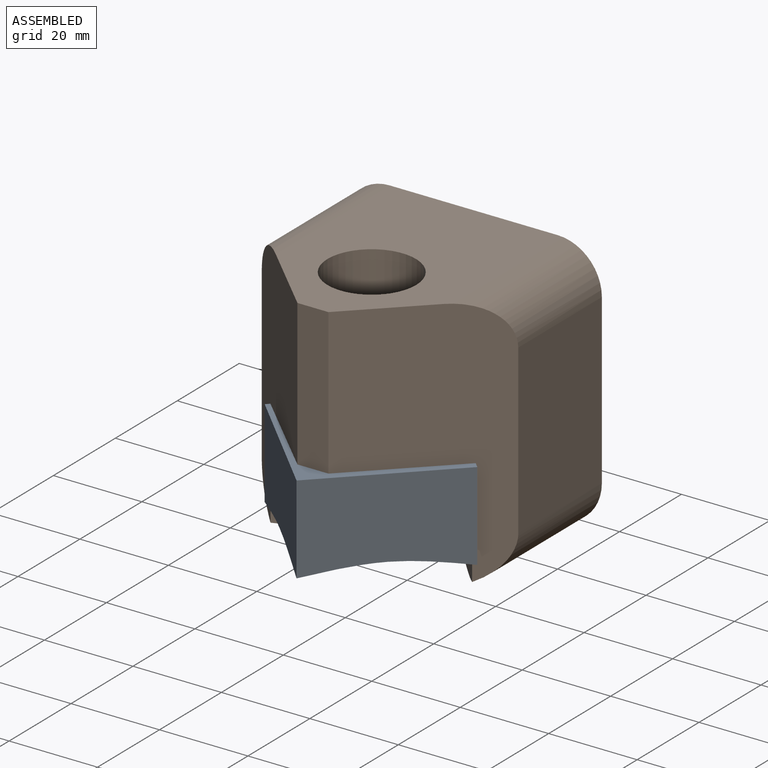
[diagram: assembled view]
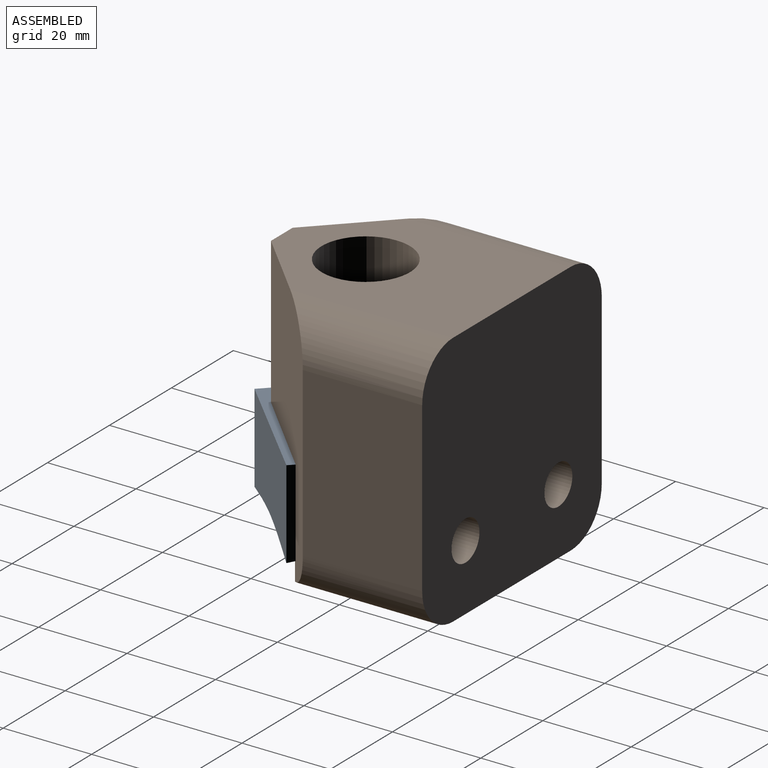
[diagram: assembled view, second angle]
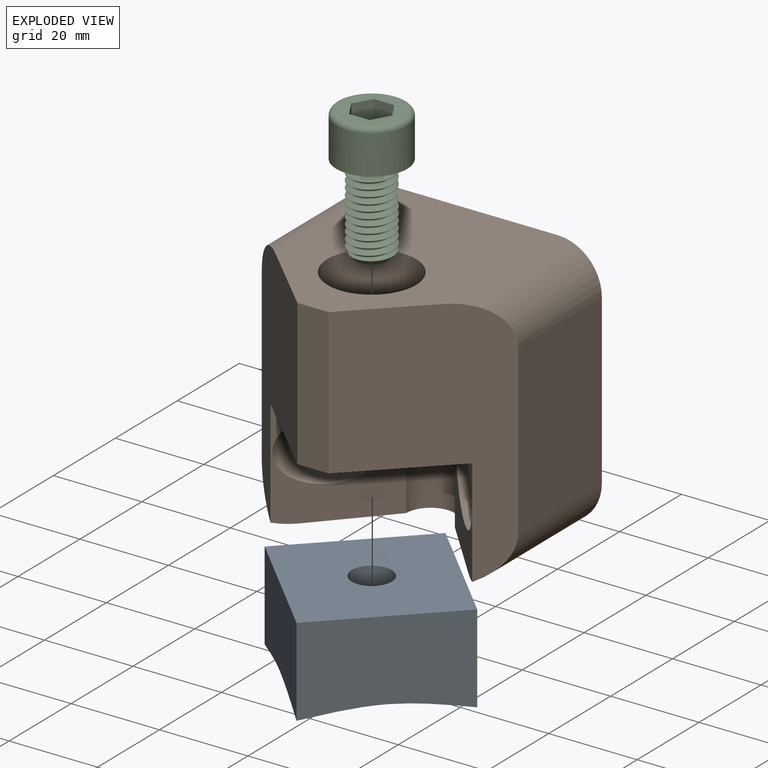
[diagram: exploded view]
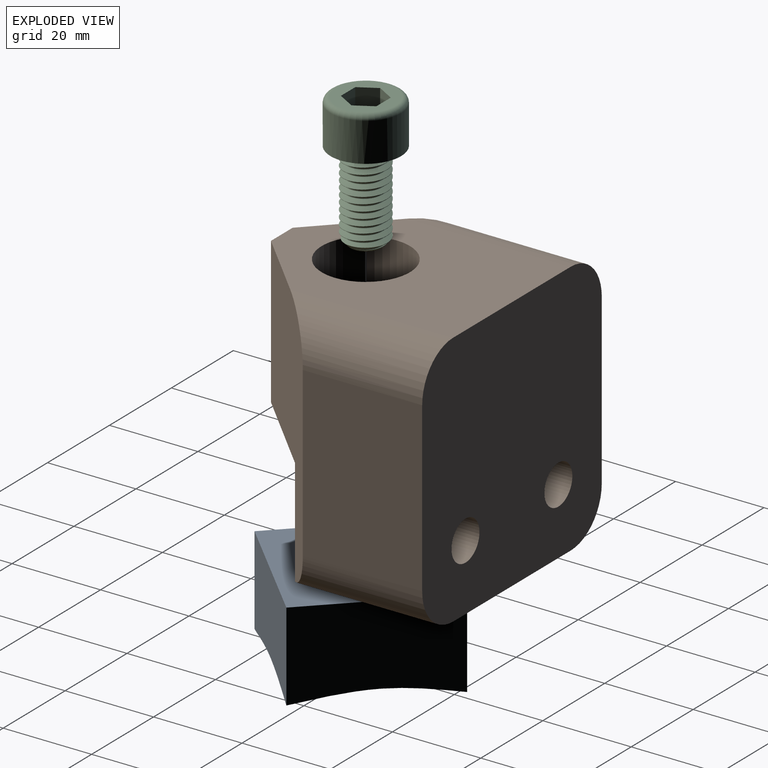
[diagram: exploded view, second angle]
ASSEMBLY  parts=3 mates=2
PART A: 14 faces, bbox 34x20x34 mm
  f0: extruded ~17.89x13.76mm, area 142.9mm2, adj f2,f8,f12,f13
  f1: extruded ~16.11x13.9mm, area 131.5mm2, adj f4,f7,f10,f13
  f2: plane 34x20mm, normal (1,0,0), area 637.5mm2, adj f0,f3,f5,f6,f8
  f3: plane 34x20mm, normal (0,0,1), area 637.5mm2, adj f2,f4,f6,f9,f10
  f4: plane 34x20mm, normal (-1,0,0), area 637.5mm2, adj f1,f3,f5,f6,f7
  f5: plane 34x20mm, normal (0,0,-1), area 637.5mm2, adj f2,f4,f6,f11,f12
  f6: plane 34x34mm, normal (0,-1,0), area 1092.4mm2, adj f2,f3,f4,f5,f13
  f7: extruded ~17.89x14.24mm, area 147.9mm2, adj f1,f4,f11,f13
  f8: extruded ~16.11x13.41mm, area 127.3mm2, adj f0,f2,f9,f13
  f9: extruded ~16.7x13.04mm, area 127.6mm2, adj f3,f8,f10,f13
  f10: extruded ~17.3x13.16mm, area 132.8mm2, adj f1,f3,f9,f13
  f11: extruded ~17.3x14.59mm, area 147.1mm2, adj f5,f7,f12,f13
  f12: extruded ~16.7x14.48mm, area 141.4mm2, adj f0,f5,f11,f13
  f13: cylinder r=4.5mm len=18.11mm, axis (0,-1,0), area 510.3mm2, adj f0,f1,f6,f7,f8,f9,f10,f11
PART B: 25 faces, bbox 61.5x55.5x61.5 mm
  f0: cylinder r=6.5mm len=15mm, axis (0,0,-1), area 612.6mm2, adj f16,f20
  f1: plane 38x29mm, normal (0,0,1), area 685.9mm2, adj f8,f15,f17,f18,f21,f24
  f2: plane 33x7mm, normal (0,1,0), area 231mm2, adj f6,f13,f14,f16
  f3: cylinder r=4.5mm len=9.5mm, axis (0,-1,0), area 268.6mm2, adj f8,f12
  f4: cylinder r=4.5mm len=9.5mm, axis (0,-1,0), area 268.6mm2, adj f8,f10
  f5: plane 38x27mm, normal (-1,0,0), area 1026mm2, adj f8,f14,f21,f22
  f6: plane 52x38mm, normal (0,0,-1), area 1426.3mm2, adj f2,f8,f13,f14,f19,f22,f23
  f7: plane 38x27mm, normal (1,0,0), area 1026mm2, adj f8,f13,f23,f24
  f8: plane 58x58mm, normal (0,-1,0), area 3150.9mm2, adj f1,f3,f4,f5,f6,f7,f21,f22
  f9: cylinder r=7.5mm len=23.37mm, axis (0,1,0), area 697.3mm2, adj f10,f17
  f10: plane 15x15mm, normal (0,1,0), area 113.1mm2, adj f4,f9
  f11: cylinder r=7.5mm len=23.21mm, axis (0,1,0), area 689.7mm2, adj f12,f18
  f12: plane 15x15mm, normal (0,1,0), area 113.1mm2, adj f3,f11
  f13: plane 60x28.19mm, normal (0.7,0.71,0), area 1334.3mm2, adj f2,f6,f7,f16,f18,f23,f24
  f14: plane 60.06x28.36mm, normal (-0.7,0.72,0), area 1340.5mm2, adj f2,f5,f6,f16,f17,f21,f22
  f15: cylinder r=5.5mm len=25mm, axis (0,0,1), area 432mm2, adj f1,f16,f17,f18
  f16: plane 45.56x43.5mm, normal (0,0,1), area 951.6mm2, adj f0,f2,f13,f14,f15,f17,f18
  f17: plane 28.49x22.61mm, normal (0.74,0.67,0), area 380.2mm2, adj f1,f9,f14,f15,f16,f21
  f18: plane 28.49x22.56mm, normal (-0.74,0.67,0), area 378.1mm2, adj f1,f11,f13,f15,f16,f24
  f19: cylinder r=10mm len=20mm, axis (0,0,-1), area 1131mm2, adj f6,f20
  f20: plane 20x20mm, normal (0,0,-1), area 181.4mm2, adj f0,f19
  f21: cylinder r=10mm len=33.13mm, axis (0,1,0), area 476.1mm2, adj f1,f5,f8,f14,f17
  f22: cylinder r=10mm len=36.78mm, axis (0,-1,0), area 479.9mm2, adj f5,f6,f8,f14
  f23: cylinder r=10mm len=36.83mm, axis (0,1,0), area 480.2mm2, adj f6,f7,f8,f13
  f24: cylinder r=10mm len=33.07mm, axis (0,-1,0), area 475.4mm2, adj f1,f7,f8,f13,f18
PART C: 17 faces, bbox 30.8x17.9x17.9 mm
  f0: plane 13.6x13.6mm, normal (-1,0,0), area 89.5mm2, adj f9,f10,f11,f12,f13,f14,f16
  f1: cylinder r=5mm len=18.5mm, axis (-1,0,0), area 82.4mm2, adj f2,f4,f6,f8
  f2: bspline ~20.83x11.55mm, area 417.3mm2, adj f1,f3,f6,f8
  f3: bspline ~20.26x9.23mm, area 101.7mm2, adj f2,f4,f6,f8
  f4: bspline ~20.33x11.55mm, area 416.3mm2, adj f1,f3,f6,f8
  f5: plane 7x7mm, normal (1,0,0), area 38.5mm2, adj f6
  f6: cone r=5mm half-angle=45deg, axis (-1,0,0), area 33.3mm2, adj f1,f2,f3,f4,f5
  f7: cylinder r=8mm len=16mm, axis (-1,0,0), area 442.3mm2, adj f8,f16
  f8: plane 16.63x16.63mm, normal (1,0,0), area 139.1mm2, adj f1,f2,f3,f4,f7
  f9: plane 5x4.01mm, normal (0,0.5,-0.87), area 23.2mm2, adj f0,f10,f14,f15
  f10: plane 5x4.01mm, normal (0,-0.5,-0.87), area 23.2mm2, adj f0,f9,f11,f15
  f11: plane 5x4.63mm, normal (0,-1,0), area 23.2mm2, adj f0,f10,f12,f15
  f12: plane 5x4.01mm, normal (0,-0.5,0.87), area 23.2mm2, adj f0,f11,f13,f15
  f13: plane 5x4.01mm, normal (0,0.5,0.87), area 23.2mm2, adj f0,f12,f14,f15
  f14: plane 5x4.63mm, normal (0,1,0), area 23.2mm2, adj f0,f9,f13,f15
  f15: plane 9.27x8.03mm, normal (-1,0,0), area 55.8mm2, adj f9,f10,f11,f12,f13,f14
  f16: torus R=6.8mm, axis (-1,0,0), area 89.6mm2, adj f0,f7
PLACE A rot(axis=(-0.86,-0.36,0.36),98.4deg) t=(0,0,-20)mm
PLACE B rot(axis=(1,0,0),180deg) t=(0,33,4.16)mm
PLACE C rot(axis=(0.71,0,-0.71),180deg) t=(0,119.59,-37.83)mm
MATE revolute A.f13 <-> B.f0  axis (0,0,1) through (0,0,0)mm
MATE fastened C.f1 <-> B.f0  axis (0,0,-1) through (0,0,15)mm
